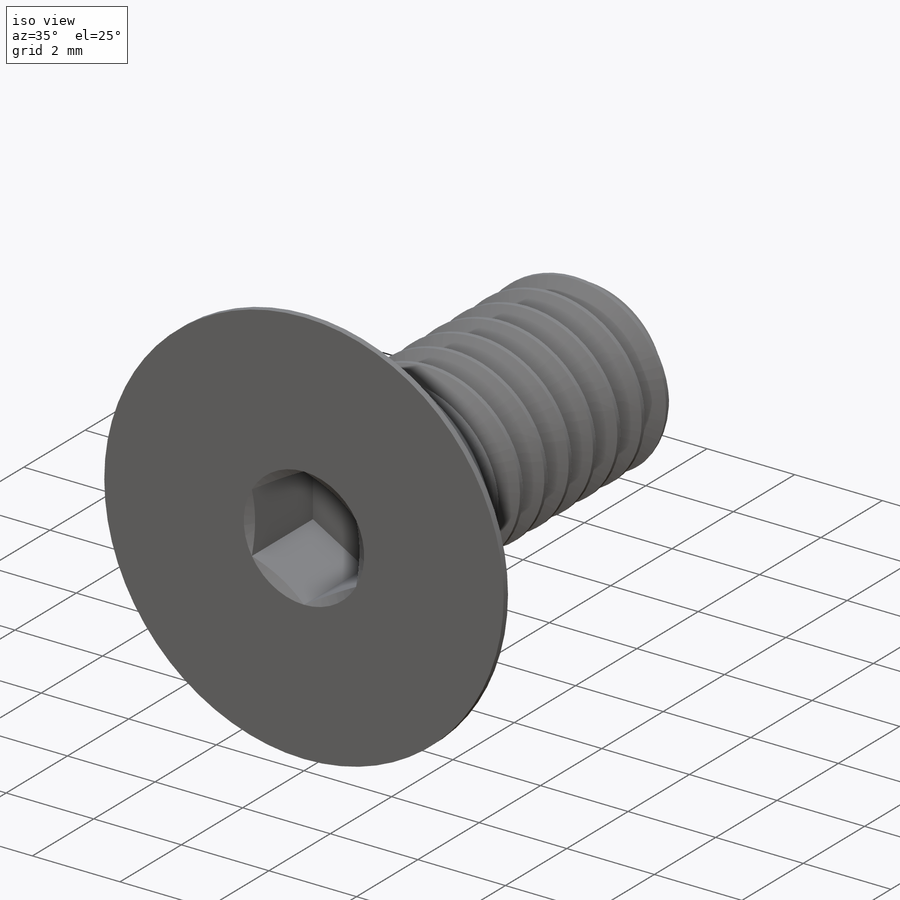
[diagram: iso view]
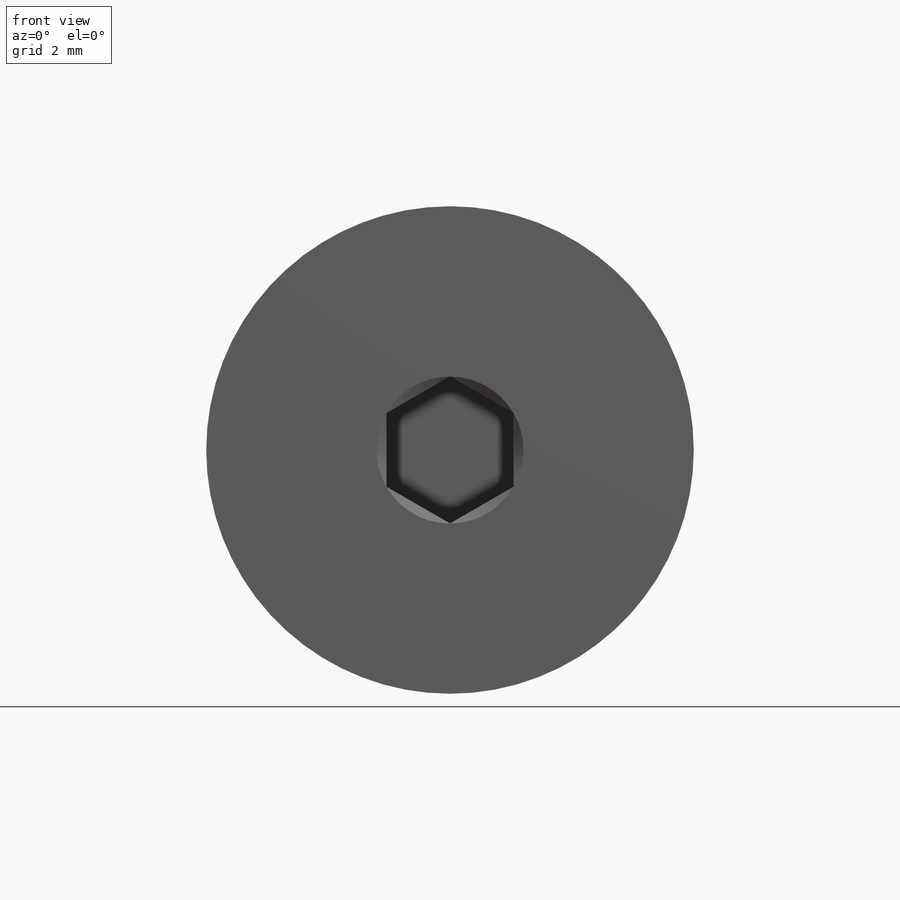
[diagram: front view]
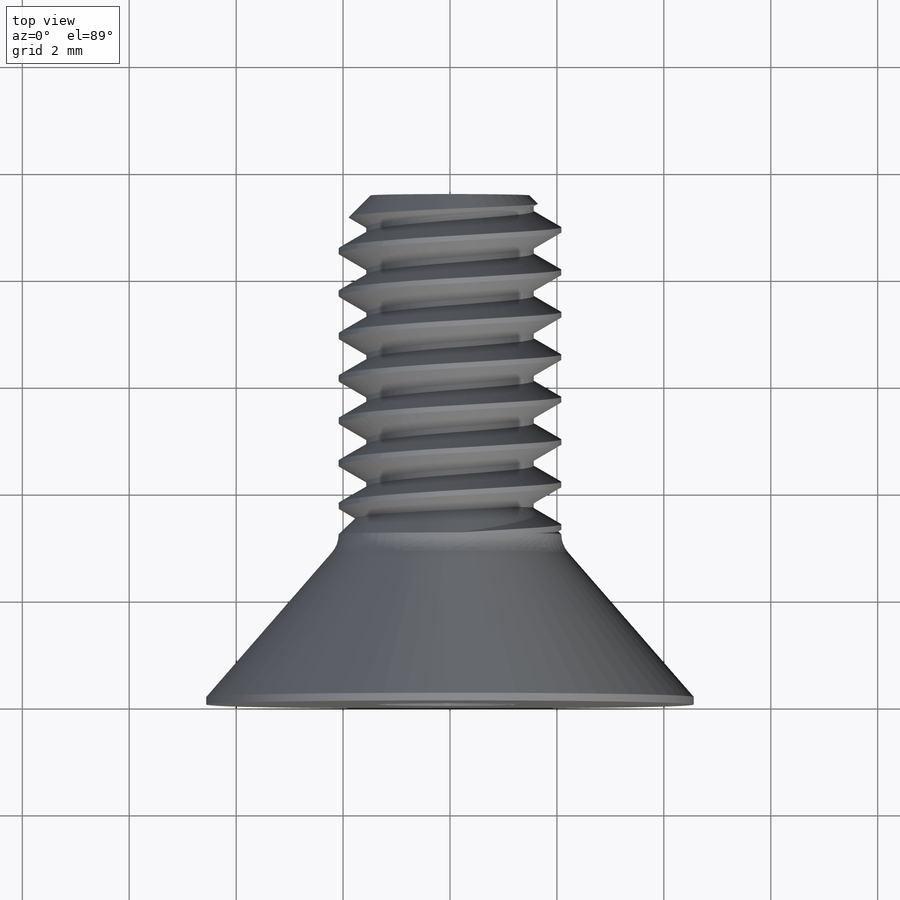
[diagram: top view]
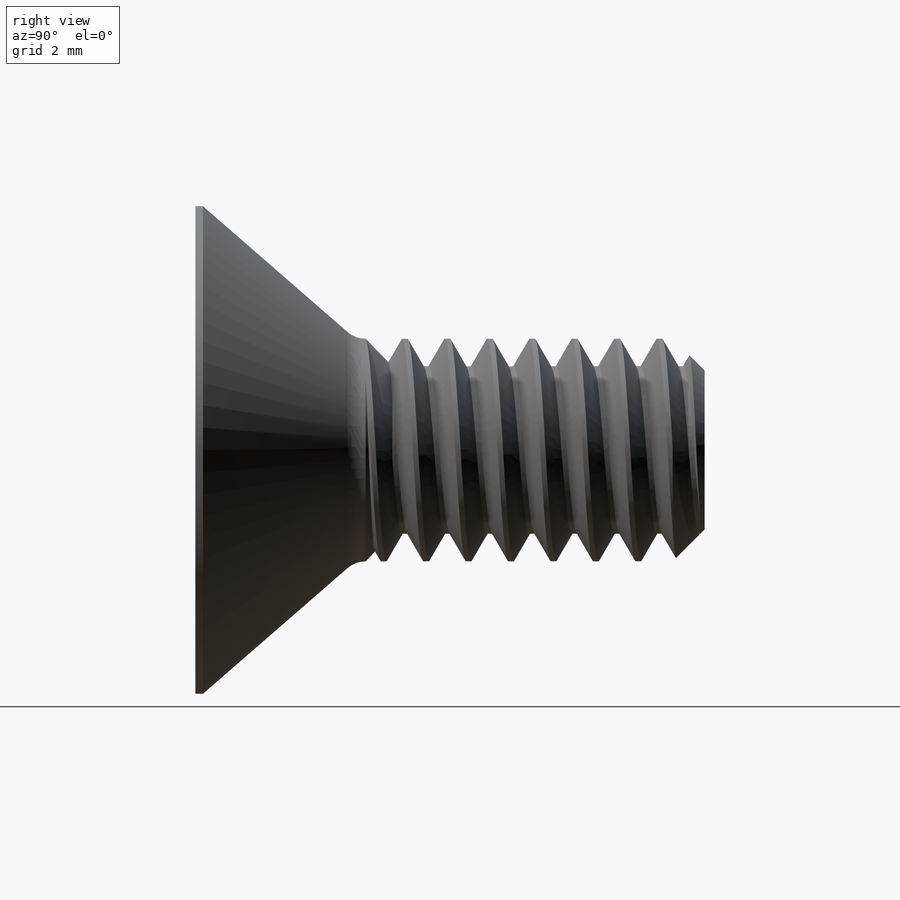
[diagram: right view]
SOLIDWORKS PART (.sldprt)
format: sldprt  version: not decoded by parser v0  size: 805,376 bytes
history: native  units: mm
features: sketch x9, revolve x2, plane x2, extrude x2, cut_extrude x2, material x1, helix x1, chamfer x1, sweep x1 (+15 scaffold rows collapsed; 1 parser-record rows omitted)
feature tree (37):
  scaffold x15  (default folders/planes/origin — collapsed)
  material  "Material <not specified>"
  sketch  "Sketch1"  dims[c1.Head Ht=6.35mm c1.Head Dia=9.1186mm c1.Dia=4.1656mm c1.Lg=25.4mm c1.D1=~2.593207mm c1.Head Angle=82.0deg c1.D2=~1.814114mm c1.D3=~4.370808mm c2.Head Ht=2.8448mm c2.Lg=9.525mm c2.D1=~0.14224mm c2.D2=~2.34061mm c2.Head Angle=82.0deg c2.Min Thread=25.4mm]
  revolve  "Revolve1"  Angle=360deg
  sketch  "Sketch3"
  helix  "Helix/Spiral1"  Pitch=9.525mm
  sketch  "Sketch2"  dims[c1.D1=~1.485125mm c2.D1=60.0deg c2.D2=~0.099219mm c2.D3=~0.396875mm]
  plane  "Plane2"
  chamfer  "Chamfer1"  Distance=0.595313mm Angle=45deg
  sweep  "Cut-Sweep1"
  sketch  "Sketch7"
  revolve  "Revolve2"  Angle=360deg
  plane  "Plane1"
  sketch  "Sketch8"
  extrude  "Boss-Extrude1"  [1 undecoded]
  sketch  "Sketch5"  dims[c1.Torx Dia=2.7432mm c1.D2=~2.414016mm c2.Torx Dia=6.35mm c2.D2=~5.856224mm c2.D3=~1.785938mm c2.Hex=~3.96875mm c2.D4=30.0deg c2.D5=30.0deg c2.D1=~1.972083mm c3.D1=7.5deg c3.Hex=1.5875mm c3.D2=~0.144843mm c4.Hex=~2.38125mm]
  cut_extrude  "Cut-Extrude2"  Depth=1.99136mm
  sketch  "Sketch6"
  cut_extrude  "Cut-Extrude3"  Depth=1.99136mm
  parser-record x1  (decoder bookkeeping rows leaked as tree rows — omitted from the tree; the rows remain in map.json)
  sketch  "Sketch9"  dims[D1=0.0mm]
  extrude  "Boss-Extrude2"  [1 undecoded]
  sketch  "Sketch10"  dims[D1=~1.190625mm]
decode coverage: 11 of 18 modeling features carry decoded parameters
note: ~ marks probable driven/reference dimensions
note: 2 parameter values undecoded
note: suppression state not decoded; provenance and decode notes live in map.json
